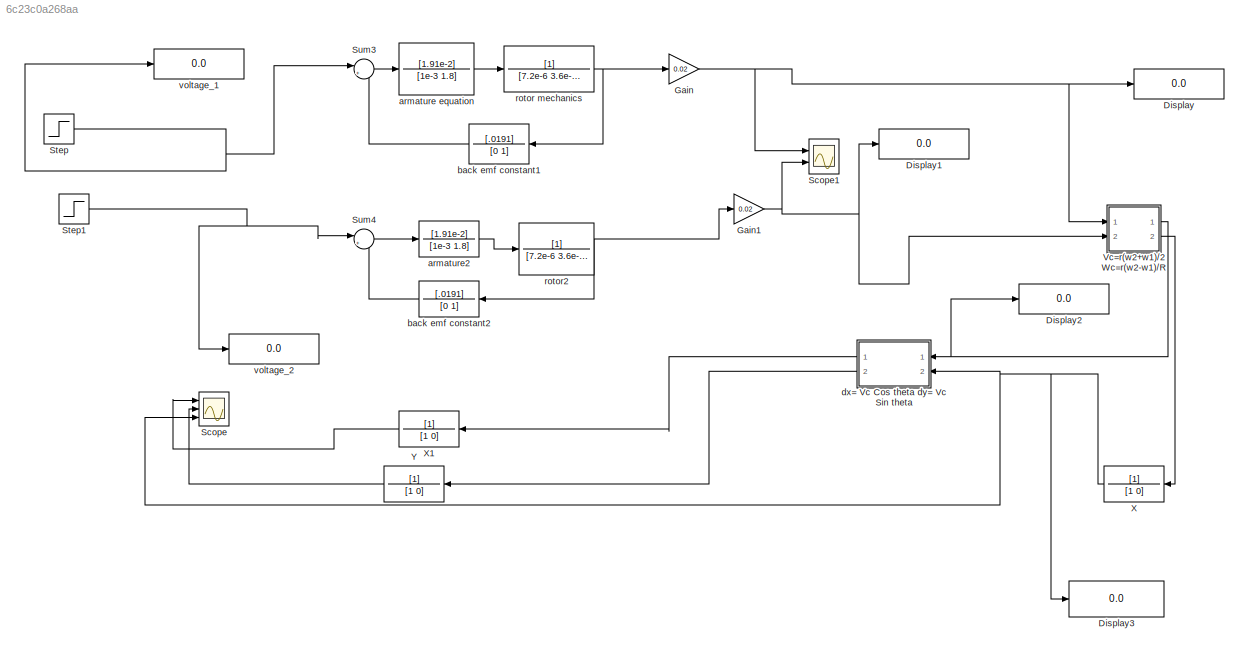
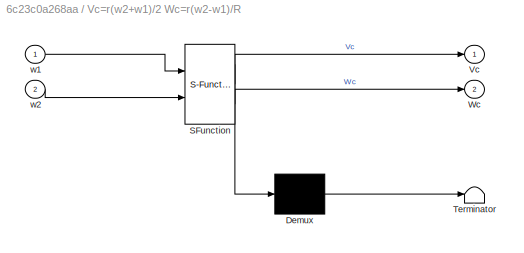
MODEL slx_6c23c0a268aa
KIND model
BLOCK [Display] Display
  Decimation = 1
  Ports = [1]
BLOCK [Display] Display1
  Decimation = 1
  Ports = [1]
BLOCK [Display] Display2
  Decimation = 1
  Ports = [1]
BLOCK [Display] Display3
  Decimation = 1
  Ports = [1]
BLOCK [Gain] Gain
  Gain = 0.02
  OutDataTypeStr = Inherit: Inherit via internal rule
  ParamDataTypeStr = Inherit: Inherit via internal rule
  SaturateOnIntegerOverflow = off
BLOCK [Gain] Gain1
  Gain = 0.02
  OutDataTypeStr = Inherit: Inherit via internal rule
  ParamDataTypeStr = Inherit: Inherit via internal rule
  SaturateOnIntegerOverflow = off
BLOCK [Scope] Scope
  DataFormat = StructureWithTime
  Floating = off
  LimitDataPoints = off
  NumInputPorts = 3
  Ports = [3]
  SampleTime = 0
  ShowLegends = off
  YMax = 5~5~5
  YMin = -5~-5~-5
  ZoomMode = yonly
BLOCK [Scope] Scope1
  DataFormat = StructureWithTime
  Floating = off
  LimitDataPoints = off
  NumInputPorts = 2
  Ports = [2]
  SampleTime = 0
  SaveName = ScopeData1
  ShowLegends = off
  YMax = 5~5
  YMin = -5~-5
  ZoomMode = xonly
BLOCK [Step] Step
  After = 12
  SampleTime = 0
  Time = 0
BLOCK [Step] Step1
  After = -12
  SampleTime = 0
  Time = 0
BLOCK [Sum] Sum3
  IconShape = round
  InputSameDT = off
  Inputs = |+-
  OutDataTypeStr = Inherit: Inherit via internal rule
  Ports = [2, 1]
  SaturateOnIntegerOverflow = off
BLOCK [Sum] Sum4
  IconShape = round
  InputSameDT = off
  Inputs = |+-
  OutDataTypeStr = Inherit: Inherit via internal rule
  Ports = [2, 1]
  SaturateOnIntegerOverflow = off
BLOCK [SubSystem] Vc=r(w2+w1)//2 Wc=r(w2-w1)//R
  ErrorFcn = Stateflow.Translate.translate
  PermitHierarchicalResolution = ExplicitOnly
  Ports = [2, 2]
  RequestExecContextInheritance = off
  SFBlockType = MATLAB Function
  TreatAsAtomicUnit = on
BLOCK [Demux] Vc=r(w2+w1)//2 Wc=r(w2-w1)//R/ Demux 
  Outputs = 1
  Ports = [1, 1]
BLOCK [S-Function] Vc=r(w2+w1)//2 Wc=r(w2-w1)//R/ SFunction 
  EnableBusSupport = on
  FunctionName = sf_sfun
  PortCounts = [2 3]
  Ports = [2, 3]
  Tag = Stateflow S-Function trial_n_error 2
BLOCK [Terminator] Vc=r(w2+w1)//2 Wc=r(w2-w1)//R/ Terminator 
BLOCK [Outport] Vc=r(w2+w1)//2 Wc=r(w2-w1)//R/Vc
  IconDisplay = Port number
BLOCK [Outport] Vc=r(w2+w1)//2 Wc=r(w2-w1)//R/Wc
  IconDisplay = Port number
  Port = 2
BLOCK [Inport] Vc=r(w2+w1)//2 Wc=r(w2-w1)//R/w1
  IconDisplay = Port number
BLOCK [Inport] Vc=r(w2+w1)//2 Wc=r(w2-w1)//R/w2
  IconDisplay = Port number
  Port = 2
BLOCK [TransferFcn] X
  Denominator = [1 0]
BLOCK [TransferFcn] X1
  Denominator = [1 0]
BLOCK [TransferFcn] Y
  Denominator = [1 0]
BLOCK [TransferFcn] armature equation
  Denominator = [1e-3 1.8]
  Numerator = [1.91e-2]
BLOCK [TransferFcn] armature2
  Denominator = [1e-3 1.8]
  Numerator = [1.91e-2]
BLOCK [TransferFcn] back emf constant1
  Denominator = [0 1]
  Numerator = [.0191]
BLOCK [TransferFcn] back emf constant2
  Denominator = [0 1]
  Numerator = [.0191]
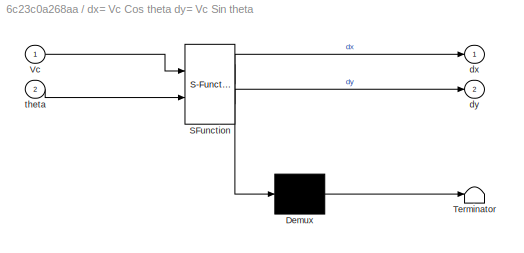
BLOCK [SubSystem] dx= Vc Cos theta dy= Vc Sin theta
  ErrorFcn = Stateflow.Translate.translate
  PermitHierarchicalResolution = ExplicitOnly
  Ports = [2, 2]
  RequestExecContextInheritance = off
  SFBlockType = MATLAB Function
  TreatAsAtomicUnit = on
BLOCK [Demux] dx= Vc Cos theta dy= Vc Sin theta/ Demux 
  Outputs = 1
  Ports = [1, 1]
BLOCK [S-Function] dx= Vc Cos theta dy= Vc Sin theta/ SFunction 
  EnableBusSupport = on
  FunctionName = sf_sfun
  PortCounts = [2 3]
  Ports = [2, 3]
  Tag = Stateflow S-Function trial_n_error 1
BLOCK [Terminator] dx= Vc Cos theta dy= Vc Sin theta/ Terminator 
BLOCK [Inport] dx= Vc Cos theta dy= Vc Sin theta/Vc
  IconDisplay = Port number
BLOCK [Outport] dx= Vc Cos theta dy= Vc Sin theta/dx
  IconDisplay = Port number
BLOCK [Outport] dx= Vc Cos theta dy= Vc Sin theta/dy
  IconDisplay = Port number
  Port = 2
BLOCK [Inport] dx= Vc Cos theta dy= Vc Sin theta/theta
  IconDisplay = Port number
  Port = 2
BLOCK [TransferFcn] rotor mechanics
  Denominator = [7.2e-6 3.6e-6]
BLOCK [TransferFcn] rotor2
  Denominator = [7.2e-6 3.6e-6]
BLOCK [Display] voltage_1
  Decimation = 1
  Ports = [1]
BLOCK [Display] voltage_2
  Decimation = 1
  Ports = [1]
NET Gain1:1 -> Display1:1, Scope1:2, Vc=r(w2+w1)//2 Wc=r(w2-w1)//R:2
NET Gain:1 -> Display:1, Scope1:1, Vc=r(w2+w1)//2 Wc=r(w2-w1)//R:1
NET Step1:1 -> Sum4:1, voltage_2:1
NET Step:1 -> Sum3:1, voltage_1:1
LINE Sum3:1 -> armature equation:1
LINE Sum4:1 -> armature2:1
NET Vc=r(w2+w1)//2 Wc=r(w2-w1)//R:1 -> Display2:1, dx= Vc Cos theta dy= Vc Sin theta:1
LINE Vc=r(w2+w1)//2 Wc=r(w2-w1)//R:2 -> X:1
LINE X1:1 -> Scope:1
NET X:1 -> Display3:1, Scope:3, dx= Vc Cos theta dy= Vc Sin theta:2
LINE Y:1 -> Scope:2
LINE armature equation:1 -> rotor mechanics:1
LINE armature2:1 -> rotor2:1
LINE back emf constant1:1 -> Sum3:2
LINE back emf constant2:1 -> Sum4:2
LINE dx= Vc Cos theta dy= Vc Sin theta:1 -> X1:1
LINE dx= Vc Cos theta dy= Vc Sin theta:2 -> Y:1
NET rotor mechanics:1 -> Gain:1, back emf constant1:1
NET rotor2:1 -> Gain1:1, back emf constant2:1
note: NET lines group one-source signal fan-out (src -> all destinations, sorted); 1:1 wires keep LINE
